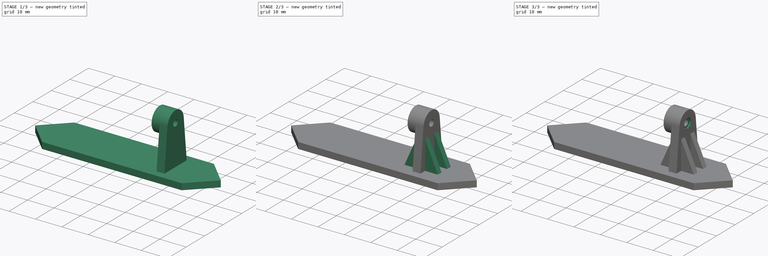
[diagram: build sequence overview — one tinted view per stage of 3, left to right]
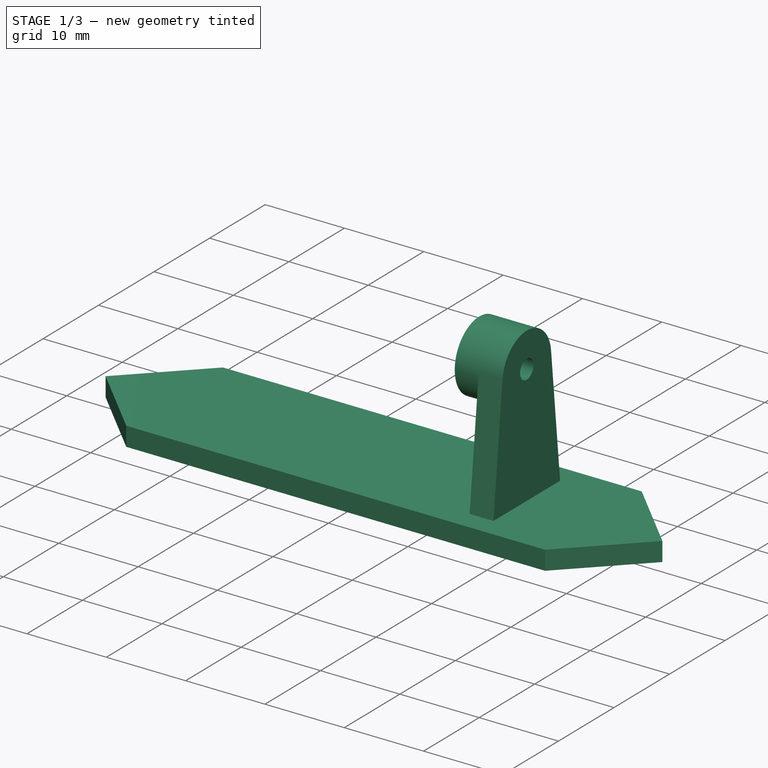
[diagram: stage 1 of 3 — iso view after this stage's code; geometry added in this stage tinted green]
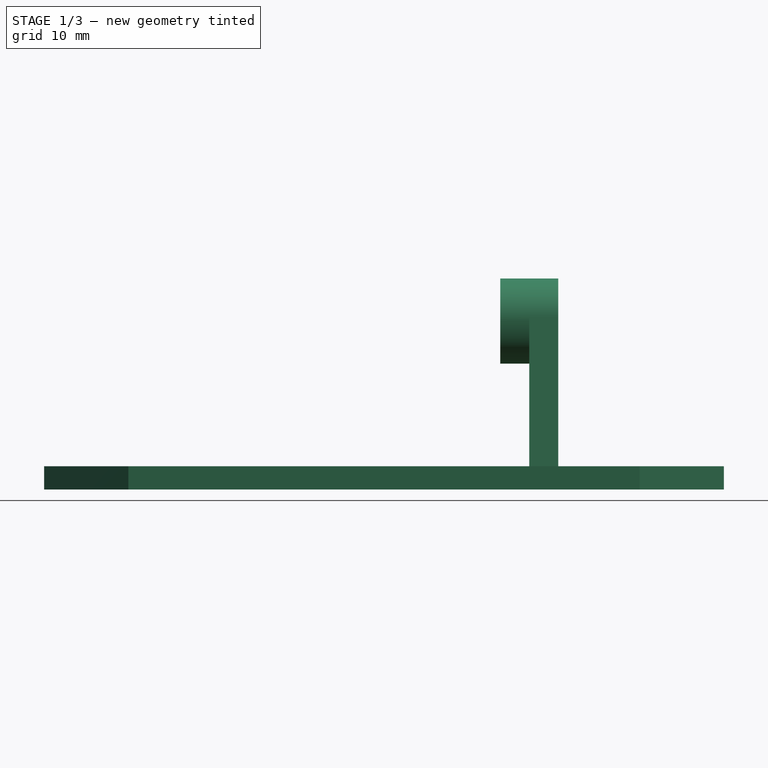
[diagram: stage 1 of 3 — front view after this stage's code; geometry added in this stage tinted green]
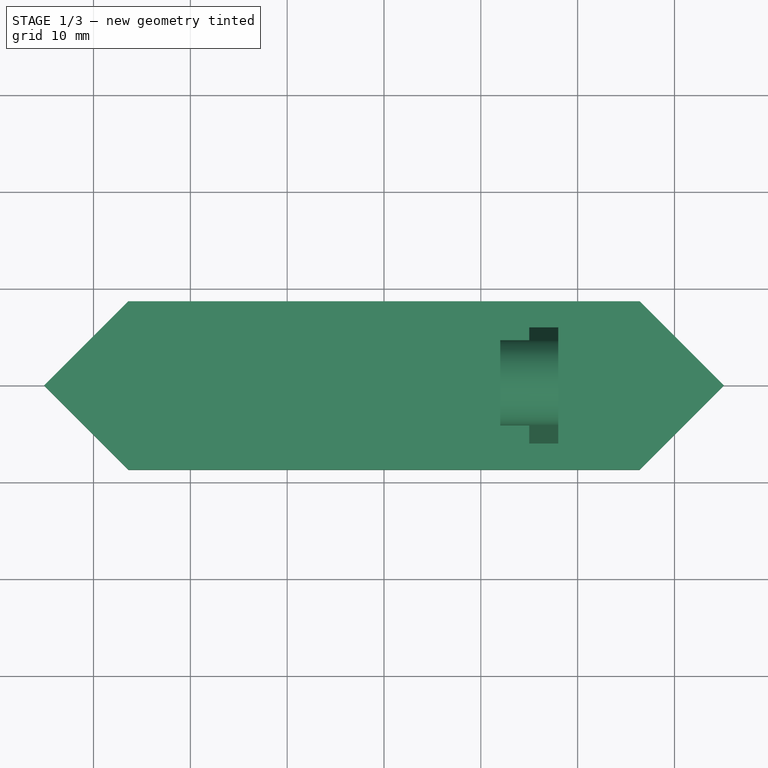
[diagram: stage 1 of 3 — top view after this stage's code; geometry added in this stage tinted green]
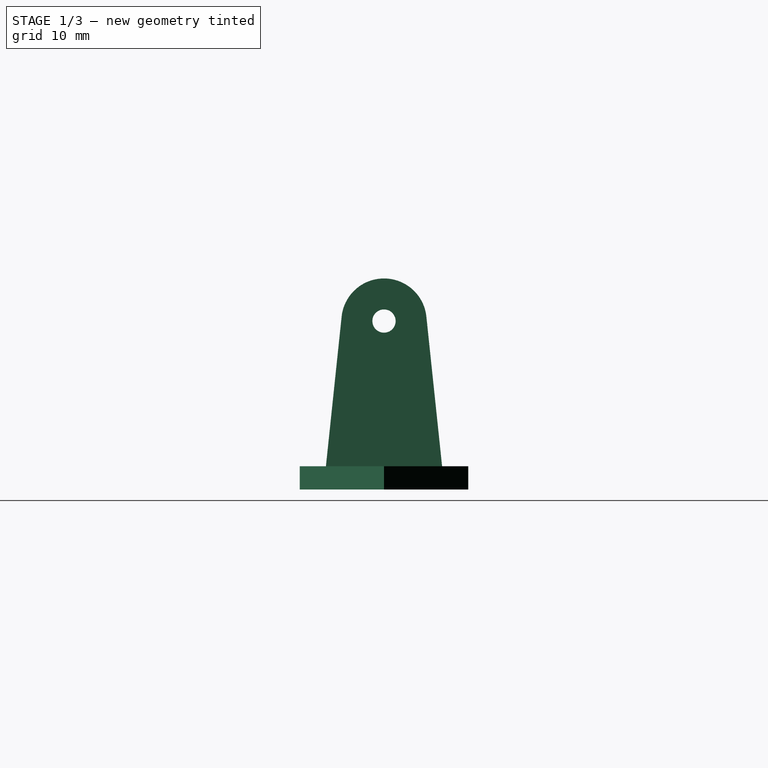
[diagram: stage 1 of 3 — right view after this stage's code; geometry added in this stage tinted green]
FCSTD DOCUMENT  (FreeCAD 0.21R33675 (Git))
Label: Segment_7017_V2
License: All rights reserved
LicenseURL: http://en.wikipedia.org/wiki/All_rights_reserved
objects: Sketcher::SketchObject×6, PartDesign::Pad×5, PartDesign::Plane×2, PartDesign::LinearPattern×1, Spreadsheet::Sheet×1, PartDesign::Pocket×1, PartDesign::PolarPattern×1, PartDesign::Body×1
note: 23 computed .brp shape members not serialized (recipe doc carries the construction recipe); baked Part::Feature solids carry a one-line shape summary decoded from their .brp

FEATURE [Sketcher::SketchObject] Sketch
  FullyConstrained = true
  MapMode = 5
  Support = -> [XY_Plane]
  expr: Constraints[10] = <<Params>>.face_height
  expr: Constraints[15] = <<Params>>.face_width
  sketch-geometry (6):
    g0: LineSegment StartX=-26.4 StartY=8.7 StartZ=0 EndX=26.4 EndY=8.7 EndZ=0
    g1: LineSegment StartX=-26.4 StartY=-8.7 StartZ=0 EndX=26.4 EndY=-8.7 EndZ=0
    g2: LineSegment StartX=26.4 StartY=8.7 StartZ=0 EndX=35.1 EndY=0 EndZ=0
    g3: LineSegment StartX=26.4 StartY=-8.7 StartZ=0 EndX=35.1 EndY=0 EndZ=0
    g4: LineSegment StartX=-26.4 StartY=-8.7 StartZ=0 EndX=-35.1 EndY=0 EndZ=0
    g5: LineSegment StartX=-26.4 StartY=8.7 StartZ=0 EndX=-35.1 EndY=0 EndZ=0
  constraints (16):
    c: Horizontal(g0)
    c: Horizontal(g1)
    c: Coincident(g2,g0)
    c: PointOnObject(g2,g-1)
    c: Coincident(g3,g1)
    c: Coincident(g3,g2)
    c: Coincident(g4,g1)
    c: Coincident(g5,g0)
    c: Coincident(g5,g4)
    c: Angle(g4,g5) = 1.5708
    c: DistanceY(g1,g0) = 17.4
    c: Angle(g2,g3) = 1.5708
    c: Symmetric(g0,g1,g-1)
    c: Equal(g0,g1)
    c: Symmetric(g4,g2,g-2)
    c: DistanceX(g4,g2) = 70.2
FEATURE [PartDesign::Pad] Pad  label="Face"
  Direction = (0,0,1)
  Length = 2.4
  Length2 = 100
  Profile = -> Sketch
  Type = 0
  expr: Length = <<Params>>.face_thickness
FEATURE [Sketcher::SketchObject] Sketch002
  AttachmentOffset = pos=(0,0,15) rot=(0,0,1;0rad)
  FullyConstrained = true
  MapMode = 5
  Placement = pos=(15,-3.3e-15,3.3e-15) rot=(0.57735,0.57735,0.57735;2.0944rad)
  Support = -> [YZ_Plane]
  expr: Constraints[11] = <<Params>>.screw_height
  expr: Constraints[3] = <<Params>>.shaft_can_external
  expr: Constraints[5] = <<Params>>.arm_width
  expr: Constraints[6] = <<Params>>.arm_height
  expr: Constraints[8] = <<Params>>.screw_diameter
  sketch-geometry (5):
    g0: LineSegment StartX=-6 StartY=2.4 StartZ=0 EndX=6 EndY=2.4 EndZ=0
    g1: ArcOfCircle CenterX=0 CenterY=17.4 CenterZ=0 NormalX=0 NormalY=0 NormalZ=1 AngleXU=0 Radius=4.4 StartAngle=0.104669 EndAngle=3.03692
    g2: LineSegment StartX=-6 StartY=2.4 StartZ=0 EndX=-4.37592 EndY=17.8597 EndZ=0
    g3: LineSegment StartX=6 StartY=2.4 StartZ=0 EndX=4.37592 EndY=17.8597 EndZ=0
    g4: Circle CenterX=0 CenterY=17.4 CenterZ=0 NormalX=0 NormalY=0 NormalZ=1 AngleXU=0 Radius=1.2
  constraints (12):
    c: PointOnObject(g1,g-2)
    c: Coincident(g2,g0)
    c: Coincident(g3,g0)
    c: Diameter(g1) = 8.8
    c: Symmetric(g0,g0,g-2)
    c: DistanceX(g0,g0) = 12
    c: DistanceY(g-1,g0) = 2.4
    c: Coincident(g4,g1)
    c: Diameter(g4) = 2.4
    c: Tangent(g1,g2) = 1.5708
    c: Tangent(g1,g3) = -1.5708
    c: DistanceY(g-1,g1) = 17.4
FEATURE [PartDesign::Pad] Pad001  label="Arm"
  BaseFeature = -> Pad
  Direction = (1,-2e-16,3e-16)
  Length = 3
  Length2 = 10
  Profile = -> Sketch002
  ReferenceAxis = -> Sketch002 [N_Axis]
  Type = 0
  expr: Length = <<Params>>.arm_thickness
FEATURE [PartDesign::Plane] DatumPlane  label="PlaneCan"
  Length = 60
  MapMode = 5
  Placement = pos=(15,-2.5e-15,3.1e-15) rot=(-0.57735,0.57735,0.57735;4.18879rad)
  ResizeMode = 0
  Support = -> [Pad001]
  Width = 60
FEATURE [Sketcher::SketchObject] Sketch003
  ExternalGeometry = -> [Pad001]
  FullyConstrained = true
  MapMode = 5
  Placement = pos=(15,-2.5e-15,3.1e-15) rot=(-0.57735,0.57735,0.57735;4.18879rad)
  Support = -> [Pad001]
  expr: Constraints[0] = <<Params>>.shaft_can_external
  expr: Constraints[2] = <<Params>>.shaft_can_Internal
  sketch-geometry (2):
    g0: Circle CenterX=0 CenterY=17.4 CenterZ=0 NormalX=0 NormalY=0 NormalZ=1 AngleXU=0 Radius=4.4
    g1: Circle CenterX=0 CenterY=17.4 CenterZ=0 NormalX=0 NormalY=0 NormalZ=1 AngleXU=0 Radius=2.6
  constraints (4):
    c: Diameter(g0) = 8.8
    c: Coincident(g1,g0)
    c: Diameter(g1) = 5.2
    c: Coincident(g0,g-3)
FEATURE [PartDesign::Pad] Pad002  label="ShaftHole"
  BaseFeature = -> Pad001
  Direction = (-1,2e-16,-2e-16)
  Length = 3
  Length2 = 10
  Profile = -> Sketch003
  ReferenceAxis = -> Sketch003 [N_Axis]
  Type = 0
  expr: Length = <<Params>>.shaft_can_length
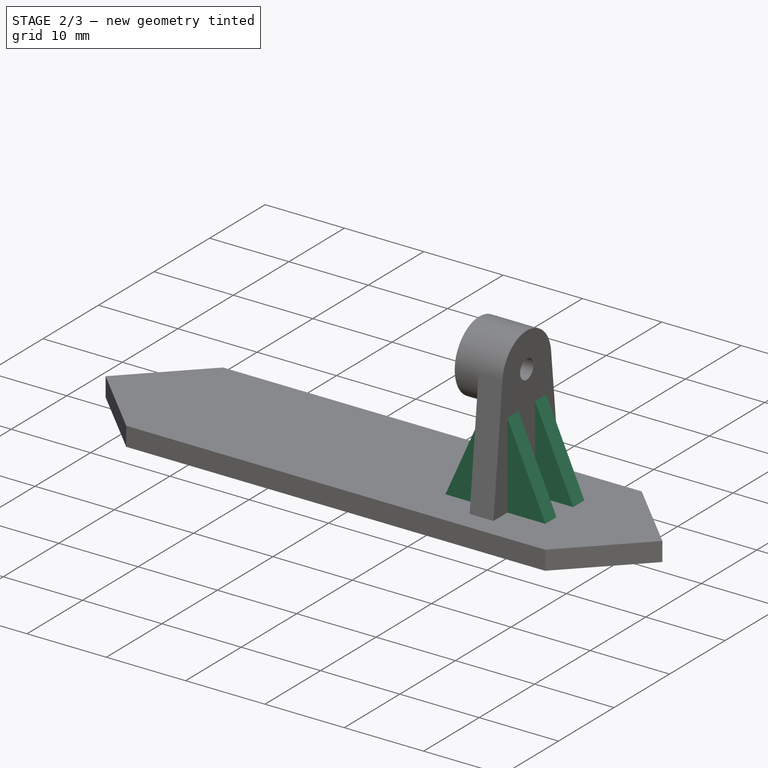
[diagram: stage 2 of 3 — iso view after this stage's code; geometry added in this stage tinted green]
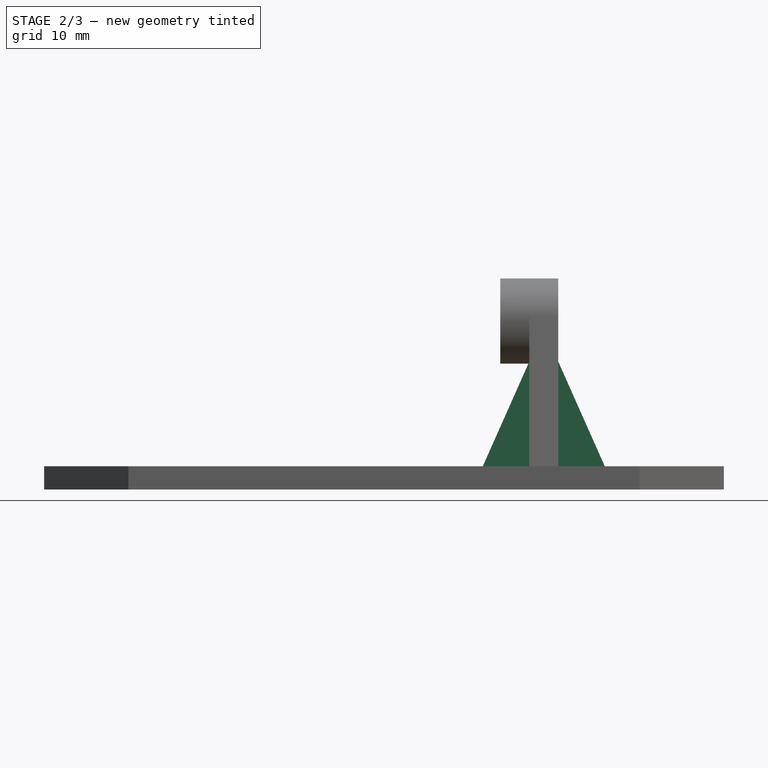
[diagram: stage 2 of 3 — front view after this stage's code; geometry added in this stage tinted green]
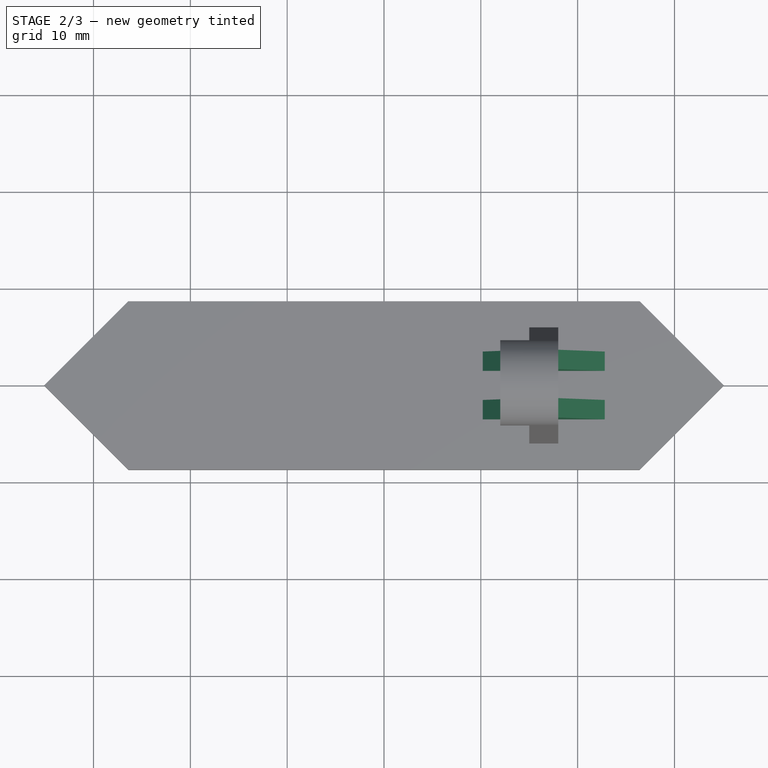
[diagram: stage 2 of 3 — top view after this stage's code; geometry added in this stage tinted green]
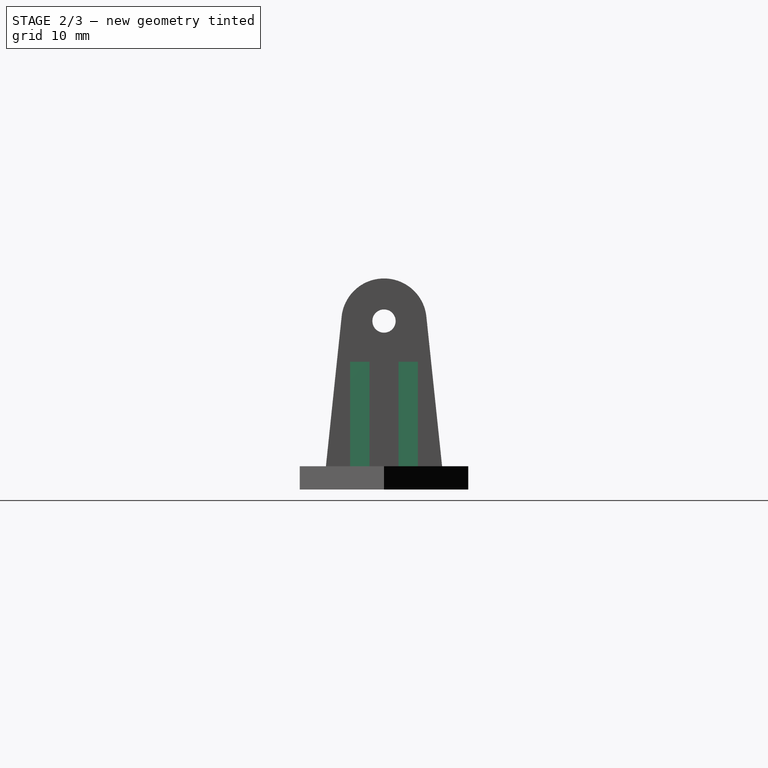
[diagram: stage 2 of 3 — right view after this stage's code; geometry added in this stage tinted green]
FEATURE [PartDesign::Plane] DatumPlane001  label="PlaneScrewHole"
  Length = 82.6218
  MapMode = 5
  Placement = pos=(1.2e-15,6.18388,0.649632) rot=(0,0.66915,0.743128;3.14159rad)
  ResizeMode = 0
  Support = -> [Pad002]
  Width = 67.372
FEATURE [Sketcher::SketchObject] Sketch005
  AttachmentOffset = pos=(0,0,1.5) rot=(0,0,1;0rad)
  FullyConstrained = true
  MapMode = 5
  Placement = pos=(0,-1.5,-3e-16) rot=(1,0,0;1.5708rad)
  Support = -> [XZ_Plane]
  expr: .AttachmentOffset.Base.y = 0 mm
  expr: Constraints[4] = <<Params>>.rib_height
  expr: Constraints[5] = <<Params>>.nerve_size
  expr: Constraints[7] = <<Params>>.arm_height
  expr: Constraints[8] = <<Params>>.arm_offset
  sketch-geometry (6):
    g0: LineSegment StartX=10.2 StartY=2.4 StartZ=0 EndX=15 EndY=13.2 EndZ=0
    g1: LineSegment StartX=15 StartY=13.2 StartZ=0 EndX=15 EndY=2.4 EndZ=0
    g2: LineSegment StartX=15 StartY=2.4 StartZ=0 EndX=10.2 EndY=2.4 EndZ=0
    g3: LineSegment StartX=18 StartY=13.2 StartZ=0 EndX=18 EndY=2.4 EndZ=0
    g4: LineSegment StartX=18 StartY=2.4 StartZ=0 EndX=22.8 EndY=2.4 EndZ=0
    g5: LineSegment StartX=22.8 StartY=2.4 StartZ=0 EndX=18 EndY=13.2 EndZ=0
  constraints (18):
    c: Vertical(g1)
    c: Coincident(g0,g1)
    c: Coincident(g1,g2)
    c: Coincident(g0,g2)
    c: DistanceY(g1,g1) = 10.8
    c: DistanceX(g2,g2) = 4.8
    c: Angle(g1,g2) = 1.5708
    c: DistanceY(g-1,g1) = 2.4
    c: DistanceX(g-1,g1) = 15
    c: Vertical(g3)
    c: Coincident(g3,g4)
    c: Horizontal(g4)
    c: Coincident(g4,g5)
    c: Coincident(g5,g3)
    c: Horizontal(g3,g1)
    c: Equal(g2,g4)
    c: Equal(g1,g3)
    c: DistanceX(g0,g3) = 3
FEATURE [PartDesign::Pad] Pad003  label="Rib"
  BaseFeature = -> Pad002
  Direction = (0,-1,-2e-16)
  Length = 2
  Length2 = 10
  Profile = -> Sketch005
  ReferenceAxis = -> Sketch005 [N_Axis]
  Type = 0
FEATURE [PartDesign::LinearPattern] LinearPattern  label="Ribs"
  BaseFeature = -> Pad003
  Direction = -> Y_Axis
  Length = 5
  Occurrences = 2
  Originals = -> [Pad003]
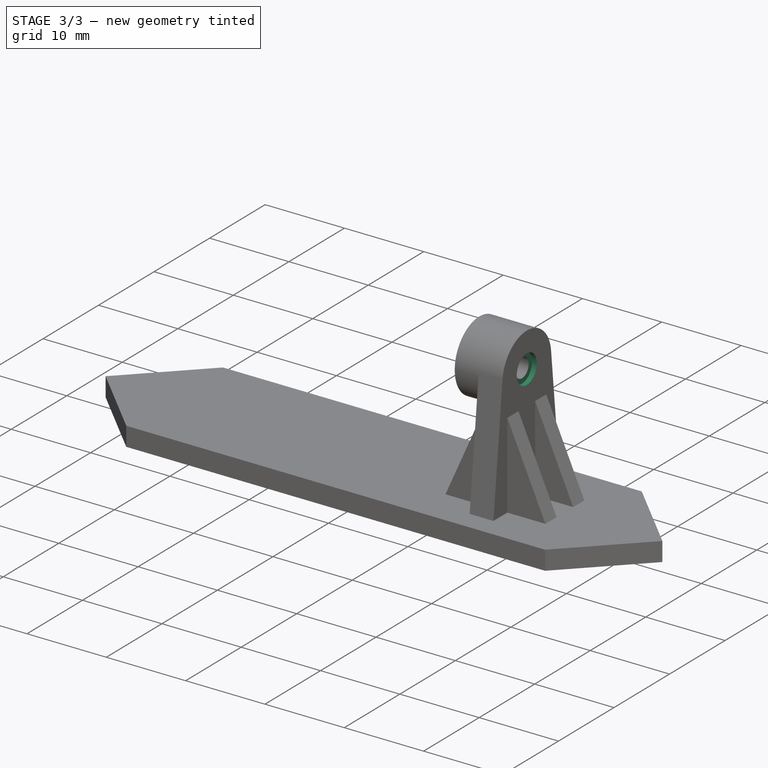
[diagram: stage 3 of 3 — iso view after this stage's code; geometry added in this stage tinted green]
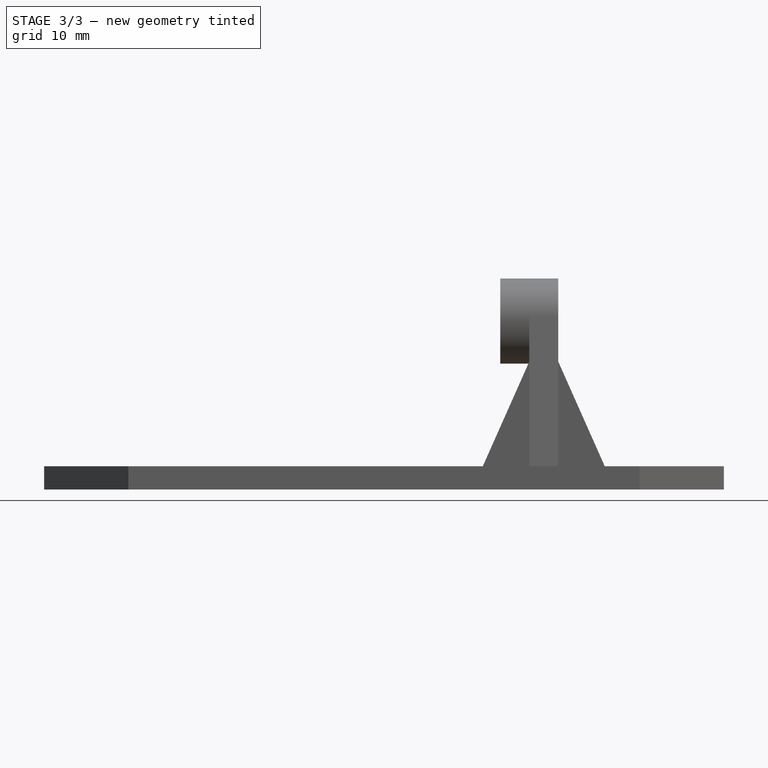
[diagram: stage 3 of 3 — front view after this stage's code; geometry added in this stage tinted green]
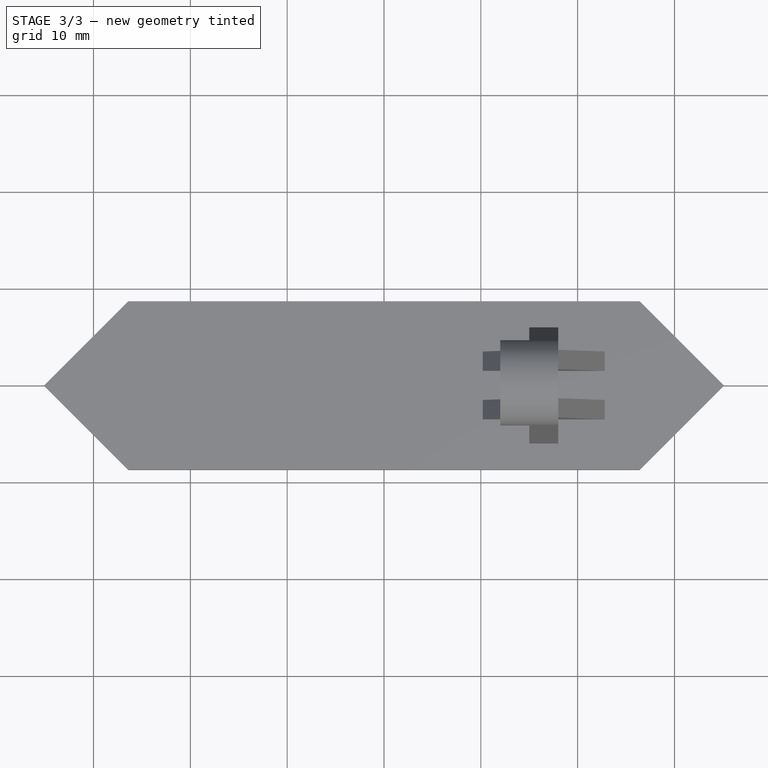
[diagram: stage 3 of 3 — top view after this stage's code; geometry added in this stage tinted green]
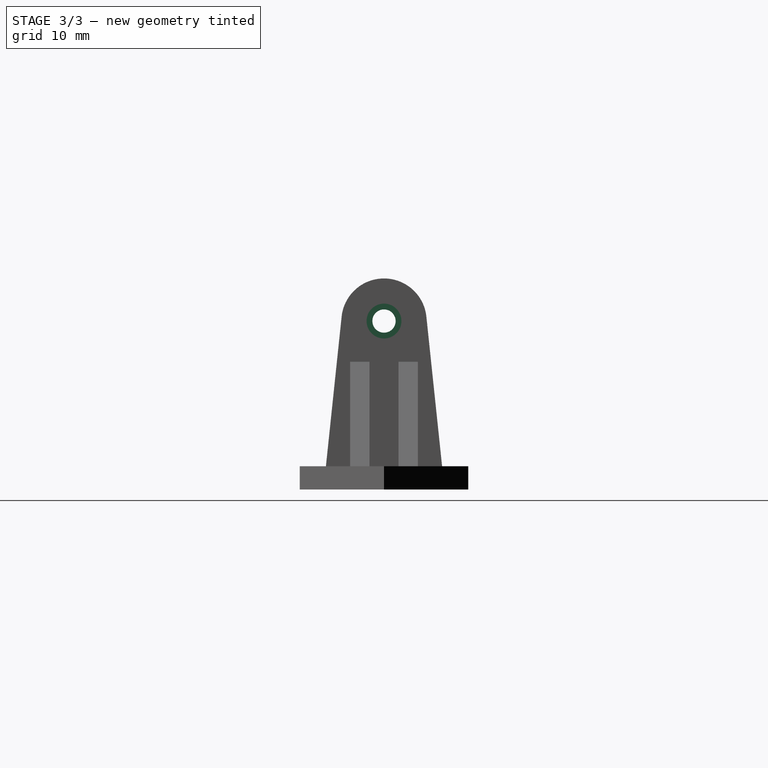
[diagram: stage 3 of 3 — right view after this stage's code; geometry added in this stage tinted green]
FEATURE [Spreadsheet::Sheet] Spreadsheet  label="Params"
  cells = D1='Tracks 0,4mm; E1='Tracks 0,6mm; B2='face_width; C2(face_width)=70.2; D2==C2 / 0.4; E2==C2 / 0.6; B3='face_height; C3(face_height)=17.4; D3==C3 / 0.4; E3==C3 / 0.6; B4='face_thickness; C4(face_thickness)=2.4; D4==C4 / 0.4; E4==C4 / 0.6; B5='screw_diameter; C5(screw_diameter)=2.4; D5==C5 / 0.4; E5==C5 / 0.6; B6='screw_height; C6(screw_height)=17.4; D6==C6 / 0.4; E6==C6 / 0.6; B7='shaft_can_external; C7(shaft_can_external)=8.8; D7==C7 / 0.4; E7==C7 / 0.6; B8='screw_cavity; C8(screw_cavity)=3.6; D8==C8 / 0.4; E8==C8 / 0.6; B9='shaft_can_Internal; C9(shaft_can_Internal)=5.2; D9==C9 / 0.4; E9==C9 / 0.6; B10='arm_width; C10(arm_width)=12; D10==C10 / 0.4; E10==C10 / 0.6; B11='arm_height; C11(arm_height)=2.4; D11==C11 / 0.4; E11==C11 / 0.6; B12='arm_thickness; C12(arm_thickness)=3; D12==C12 / 0.4; E12==C12 / 0.6; B13='arm_offset; C13(arm_offset)=15; D13==C13 / 0.4; E13==C13 / 0.6; B14='nerve_size; C14(nerve_size)=4.8; D14==C14 / 0.4; E14==C14 / 0.6; B15='rib_height; C15(rib_height)=10.8; D15==C15 / 0.4; E15==C15 / 0.6; B16='shaft_can_length; C16(shaft_can_length)=3; D16==C16 / 0.4; E16==C16 / 0.6
FEATURE [Sketcher::SketchObject] Sketch006
  ExternalGeometry = -> [LinearPattern]
  FullyConstrained = true
  MapMode = 5
  Placement = pos=(18,-3e-15,3.7e-15) rot=(0.57735,0.57735,0.57735;2.0944rad)
  Support = -> [LinearPattern]
  expr: Constraints[1] = <<Params>>.screw_cavity
  sketch-geometry (1):
    g0: Circle CenterX=0 CenterY=17.4 CenterZ=0 NormalX=0 NormalY=0 NormalZ=1 AngleXU=0 Radius=1.8
  constraints (2):
    c: Coincident(g0,g-3)
    c: Diameter(g0) = 3.6
FEATURE [PartDesign::Pocket] Pocket  label="ScrewHeadCavity"
  BaseFeature = -> LinearPattern
  Direction = (-1,2e-16,-2e-16)
  Length = 0.6
  Length2 = 5
  Profile = -> Sketch006
  ReferenceAxis = -> Sketch006 [N_Axis]
  Type = 0
FEATURE [Sketcher::SketchObject] Sketch007
  ExternalGeometry = -> [Pocket]
  FullyConstrained = true
  MapMode = 5
  Placement = pos=(15,-2.5e-15,3.1e-15) rot=(-0.57735,0.57735,0.57735;4.18879rad)
  Support = -> [Pocket]
  sketch-geometry (4):
    g0: Circle CenterX=0 CenterY=17.4 CenterZ=0 NormalX=0 NormalY=0 NormalZ=1 AngleXU=0 Radius=2.3
    g1: LineSegment StartX=-0.247971 StartY=19.9881 StartZ=0 EndX=0 EndY=19.7 EndZ=0
    g2: LineSegment StartX=0 StartY=19.7 StartZ=0 EndX=0.247971 EndY=19.9881 EndZ=0
    g3: ArcOfCircle CenterX=0 CenterY=17.4 CenterZ=0 NormalX=0 NormalY=0 NormalZ=1 AngleXU=0 Radius=2.6 StartAngle=1.47528 EndAngle=1.66632
  constraints (11):
    c: Coincident(g0,g-3)
    c: Diameter(g0) = 4.6
    c: PointOnObject(g1,g-3)
    c: PointOnObject(g1,g0)
    c: Coincident(g2,g1)
    c: Equal(g1,g2)
    c: Angle(g2,g1) = 1.4212
    c: Coincident(g3,g0)
    c: Coincident(g3,g1)
    c: Coincident(g3,g2)
    c: PointOnObject(g1,g-2)
FEATURE [PartDesign::Pad] Pad004
  BaseFeature = -> Pocket
  Direction = (-1,2e-16,-2e-16)
  Length = 3
  Length2 = 10
  Profile = -> Sketch007
  ReferenceAxis = -> Sketch007 [N_Axis]
  Type = 0
FEATURE [PartDesign::PolarPattern] PolarPattern
  Angle = 360
  Axis = -> Pad004 [Edge77]
  BaseFeature = -> Pad004
  Occurrences = 21
  Originals = -> [Pad004]
FEATURE [PartDesign::Body] Body
  Group = -> [Sketch,Pad,Sketch002,Pad001,DatumPlane,Sketch003,Pad002,DatumPlane001,Sketch005,Pad003,LinearPattern,Sketch006,Pocket,Sketch007,Pad004,PolarPattern]
  Origin = -> Origin
  Tip = -> PolarPattern
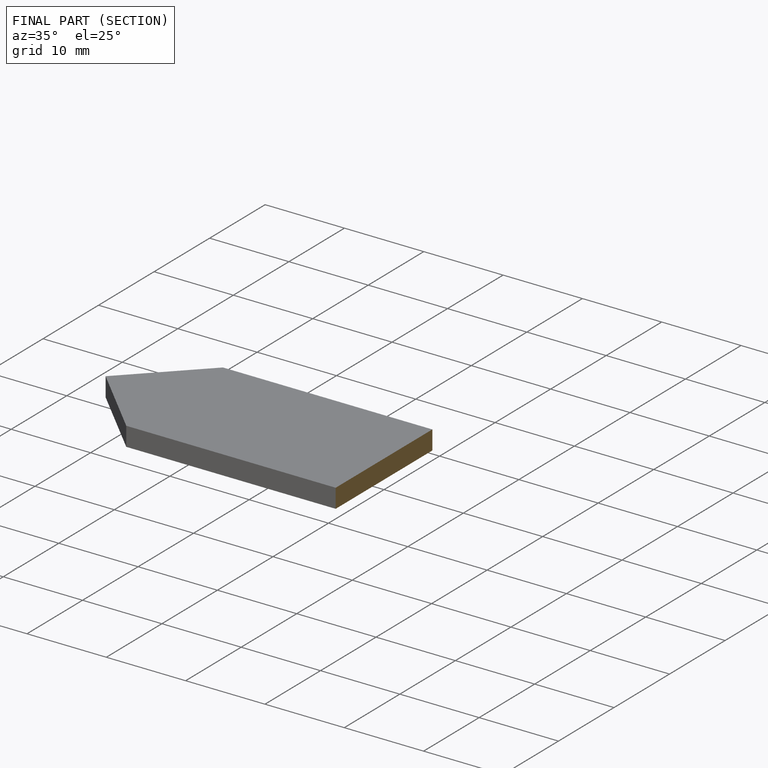
[diagram: finished part — half-section view (interior)]
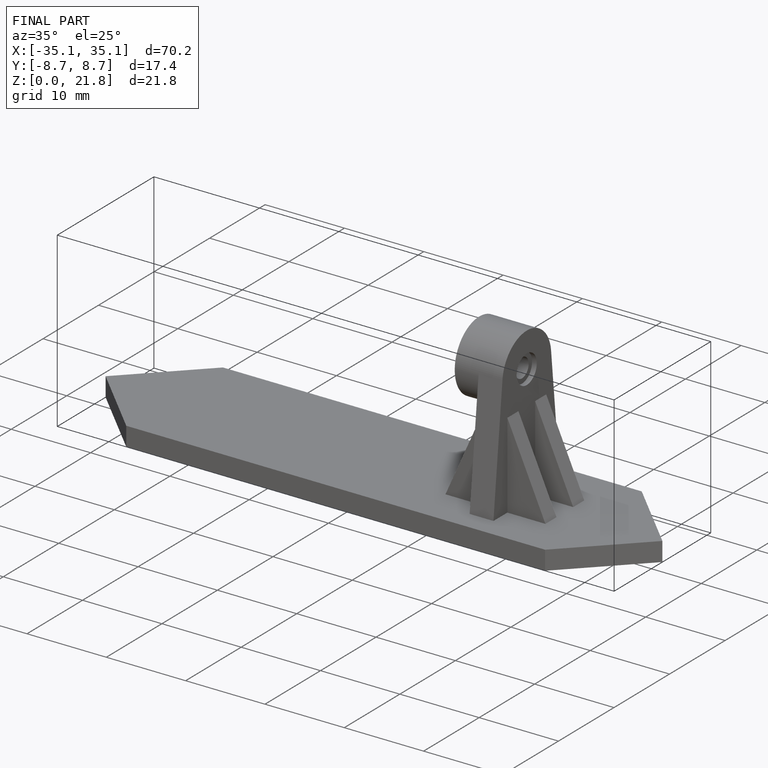
[diagram: finished part — iso view with bounding-box wireframe]
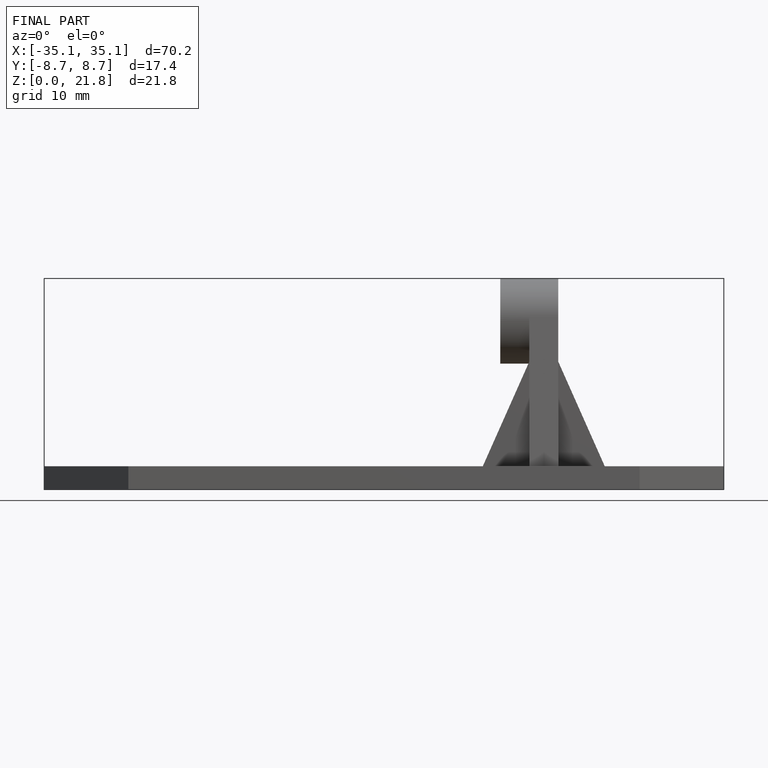
[diagram: finished part — front view with bounding-box wireframe]
